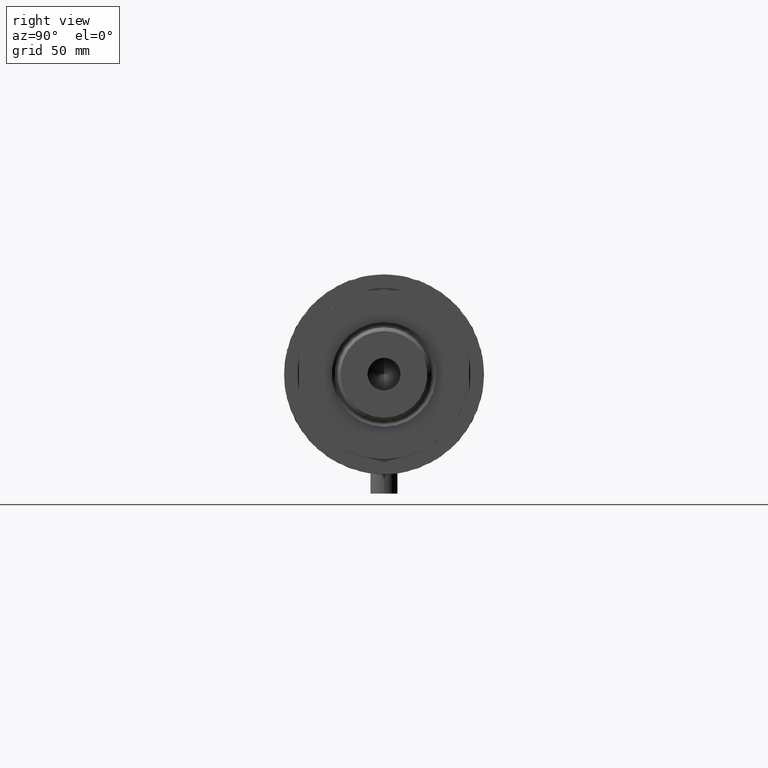
[diagram: clean part render]
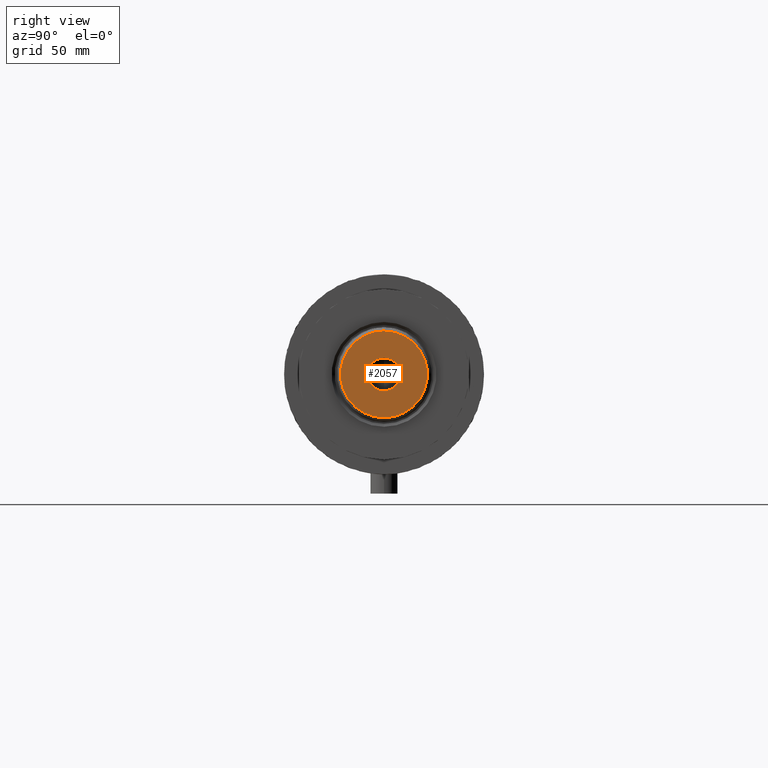
[diagram: same view with one face highlighted and labeled with its STEP entity id]
A machine part, right view. The second image highlights one B-rep face of the part: STEP entity #2057.
In plain terms, the highlighted planar face has unit normal (1, 0, -0).
Its self-contained STEP definition (entity closure, byte-faithful):
#279 = DIRECTION ( 'NONE',  ( 1.000000000000000000, 0.000000000000000000, 0.000000000000000000 ) ) ;
#334 = AXIS2_PLACEMENT_3D ( 'NONE', #4151, #1661, #279 ) ;
#482 = CARTESIAN_POINT ( 'NONE',  ( 0.000000000000000000, 0.000000000000000000, 253.3000000000000114 ) ) ;
#515 = CIRCLE ( 'NONE', #4414, 19.10000000000006182 ) ;
#587 = PLANE ( 'NONE',  #4109 ) ;
#681 = EDGE_CURVE ( 'NONE', #4140, #4104, #515, .T. ) ;
#870 = DIRECTION ( 'NONE',  ( -0.000000000000000000, -0.000000000000000000, 1.000000000000000000 ) ) ;
#904 = DIRECTION ( 'NONE',  ( 0.000000000000000000, 0.000000000000000000, 1.000000000000000000 ) ) ;
#939 = DIRECTION ( 'NONE',  ( 1.000000000000000000, 0.000000000000000000, 0.000000000000000000 ) ) ;
#1003 = DIRECTION ( 'NONE',  ( 0.000000000000000000, 0.000000000000000000, 1.000000000000000000 ) ) ;
#1048 = CARTESIAN_POINT ( 'NONE',  ( 0.000000000000000000, 0.000000000000000000, 253.3000000000000114 ) ) ;
#1086 = DIRECTION ( 'NONE',  ( 1.000000000000000000, 0.000000000000000000, 0.000000000000000000 ) ) ;
#1158 = DIRECTION ( 'NONE',  ( -0.000000000000000000, -0.000000000000000000, 1.000000000000000000 ) ) ;
#1420 = CIRCLE ( 'NONE', #334, 19.10000000000006182 ) ;
#1581 = CIRCLE ( 'NONE', #3137, 7.249999999999999112 ) ;
#1604 = CARTESIAN_POINT ( 'NONE',  ( 0.000000000000000000, 0.000000000000000000, 253.3000000000000114 ) ) ;
#1661 = DIRECTION ( 'NONE',  ( 0.000000000000000000, 0.000000000000000000, 1.000000000000000000 ) ) ;
#1714 = ORIENTED_EDGE ( 'NONE', *, *, #681, .T. ) ;
#2057 = ADVANCED_FACE ( 'NONE', ( #2739, #3793 ), #587, .T. ) ;
#2070 = DIRECTION ( 'NONE',  ( 1.000000000000000000, 0.000000000000000000, 0.000000000000000000 ) ) ;
#2299 = VERTEX_POINT ( 'NONE', #3607 ) ;
#2515 = ORIENTED_EDGE ( 'NONE', *, *, #4168, .T. ) ;
#2679 = CARTESIAN_POINT ( 'NONE',  ( -19.10000000000006182, 0.000000000000000000, 253.3000000000000114 ) ) ;
#2739 = FACE_OUTER_BOUND ( 'NONE', #4543, .T. ) ;
#2848 = ORIENTED_EDGE ( 'NONE', *, *, #3323, .F. ) ;
#2970 = CARTESIAN_POINT ( 'NONE',  ( 19.10000000000006182, 2.424800662311762954E-15, 253.3000000000000114 ) ) ;
#3137 = AXIS2_PLACEMENT_3D ( 'NONE', #482, #1158, #1086 ) ;
#3206 = CIRCLE ( 'NONE', #3859, 7.249999999999999112 ) ;
#3323 = EDGE_CURVE ( 'NONE', #3763, #2299, #3206, .T. ) ;
#3352 = CARTESIAN_POINT ( 'NONE',  ( 0.000000000000000000, 0.000000000000000000, 253.3000000000000114 ) ) ;
#3589 = EDGE_LOOP ( 'NONE', ( #2848, #4076 ) ) ;
#3607 = CARTESIAN_POINT ( 'NONE',  ( -7.249999999999999112, 8.878689293818310074E-16, 253.3000000000000114 ) ) ;
#3763 = VERTEX_POINT ( 'NONE', #4445 ) ;
#3793 = FACE_BOUND ( 'NONE', #3589, .T. ) ;
#3859 = AXIS2_PLACEMENT_3D ( 'NONE', #3352, #870, #939 ) ;
#4014 = EDGE_CURVE ( 'NONE', #2299, #3763, #1581, .T. ) ;
#4076 = ORIENTED_EDGE ( 'NONE', *, *, #4014, .F. ) ;
#4087 = DIRECTION ( 'NONE',  ( 1.000000000000000000, 0.000000000000000000, -0.000000000000000000 ) ) ;
#4104 = VERTEX_POINT ( 'NONE', #2970 ) ;
#4109 = AXIS2_PLACEMENT_3D ( 'NONE', #1604, #904, #4087 ) ;
#4140 = VERTEX_POINT ( 'NONE', #2679 ) ;
#4151 = CARTESIAN_POINT ( 'NONE',  ( 0.000000000000000000, 0.000000000000000000, 253.3000000000000114 ) ) ;
#4168 = EDGE_CURVE ( 'NONE', #4104, #4140, #1420, .T. ) ;
#4414 = AXIS2_PLACEMENT_3D ( 'NONE', #1048, #1003, #2070 ) ;
#4445 = CARTESIAN_POINT ( 'NONE',  ( 7.249999999999999112, 0.000000000000000000, 253.3000000000000114 ) ) ;
#4543 = EDGE_LOOP ( 'NONE', ( #1714, #2515 ) ) ;